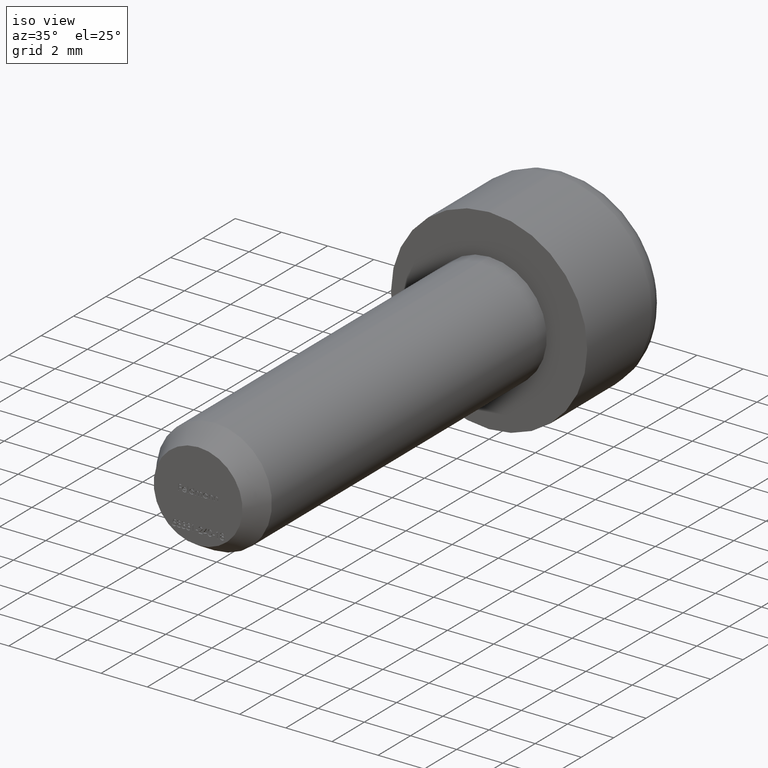
[diagram: clean part render]
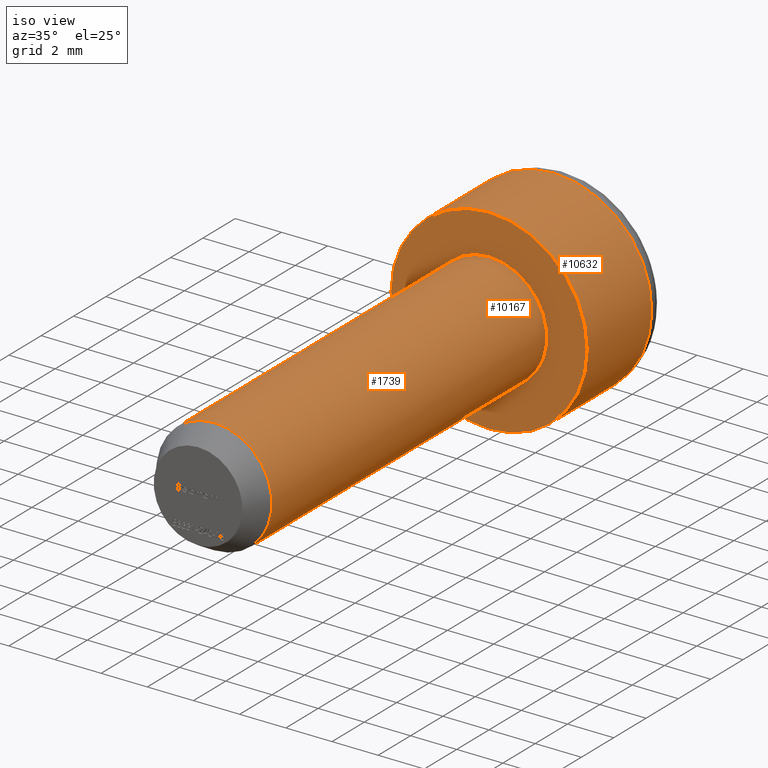
[diagram: same view with one multi-face feature highlighted, each face labeled with its STEP entity id]
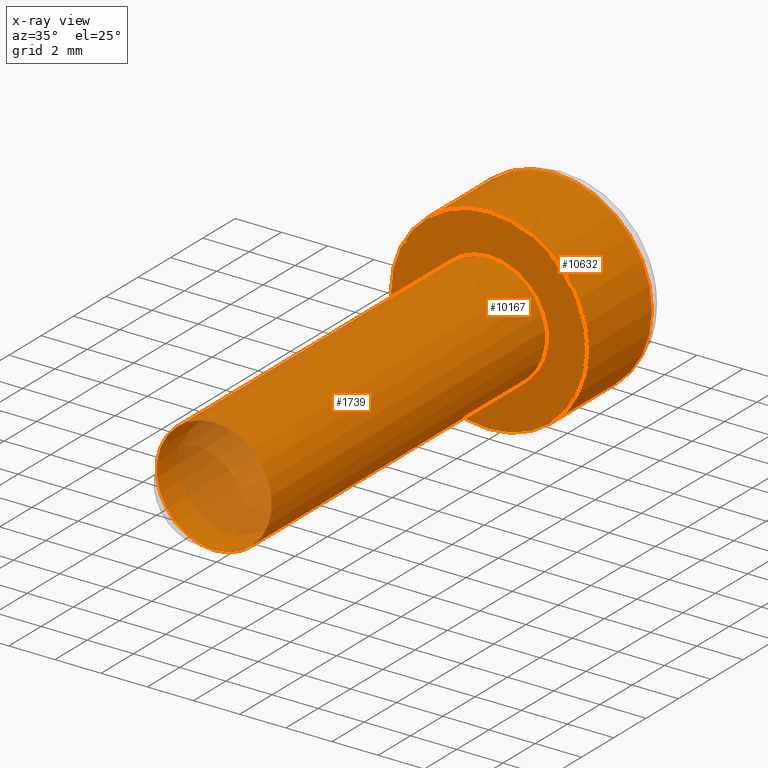
[diagram: x-ray of the same camera — body ghosted, the whole feature saturated]
A machine part, iso view. The highlighted faces form ONE feature: a stepped (counterbored) hole: 2 coaxial cylindrical walls of radii 2.5 -> 4.25 mm joined by 1 annular planar shoulder face(s). The faces share edges in the B-rep.
The next image is the same camera in x-ray: the body ghosted and the whole hole feature saturated, so the bore chain is visible through the body.
Their STEP definitions:
[1] entity #10632 (Cylinder):
#249 = DIRECTION ( 'NONE',  ( 0.0000000000000000000, 0.0000000000000000000, 1.000000000000000000 ) ) ;
#361 = EDGE_LOOP ( 'NONE', ( #12099 ) ) ;
#1545 = ORIENTED_EDGE ( 'NONE', *, *, #1563, .T. ) ;
#1563 = EDGE_CURVE ( 'NONE', #8081, #8081, #5659, .T. ) ;
#2125 = DIRECTION ( 'NONE',  ( 0.0000000000000000000, 0.0000000000000000000, 1.000000000000000000 ) ) ;
#2271 = CARTESIAN_POINT ( 'NONE',  ( 0.0000000000000000000, 4.000000000000000000, 0.0000000000000000000 ) ) ;
#2658 = DIRECTION ( 'NONE',  ( -0.0000000000000000000, -1.000000000000000000, -0.0000000000000000000 ) ) ;
#4012 = DIRECTION ( 'NONE',  ( 0.0000000000000000000, 0.0000000000000000000, -1.000000000000000000 ) ) ;
#4403 = CIRCLE ( 'NONE', #8572, 4.250000000000000000 ) ;
#5233 = CARTESIAN_POINT ( 'NONE',  ( 0.0000000000000000000, 4.000000000000000000, 4.250000000000000000 ) ) ;
#5659 = CIRCLE ( 'NONE', #14216, 4.250000000000000000 ) ;
#6739 = DIRECTION ( 'NONE',  ( 0.0000000000000000000, 1.000000000000000000, 0.0000000000000000000 ) ) ;
#8081 = VERTEX_POINT ( 'NONE', #9154 ) ;
#8190 = EDGE_LOOP ( 'NONE', ( #1545 ) ) ;
#8572 = AXIS2_PLACEMENT_3D ( 'NONE', #2271, #10852, #2125 ) ;
#8787 = AXIS2_PLACEMENT_3D ( 'NONE', #15227, #2658, #4012 ) ;
#9154 = CARTESIAN_POINT ( 'NONE',  ( 0.0000000000000000000, 0.0000000000000000000, 4.250000000000000000 ) ) ;
#10448 = CARTESIAN_POINT ( 'NONE',  ( 0.0000000000000000000, 0.0000000000000000000, 0.0000000000000000000 ) ) ;
#10632 = ADVANCED_FACE ( 'NONE', ( #14344, #13574 ), #10875, .T. ) ;
#10852 = DIRECTION ( 'NONE',  ( -0.0000000000000000000, -1.000000000000000000, -0.0000000000000000000 ) ) ;
#10875 = CYLINDRICAL_SURFACE ( 'NONE', #8787, 4.250000000000000000 ) ;
#12099 = ORIENTED_EDGE ( 'NONE', *, *, #12448, .T. ) ;
#12448 = EDGE_CURVE ( 'NONE', #12790, #12790, #4403, .T. ) ;
#12790 = VERTEX_POINT ( 'NONE', #5233 ) ;
#13574 = FACE_OUTER_BOUND ( 'NONE', #8190, .T. ) ;
#14216 = AXIS2_PLACEMENT_3D ( 'NONE', #10448, #6739, #249 ) ;
#14344 = FACE_OUTER_BOUND ( 'NONE', #361, .T. ) ;
#15227 = CARTESIAN_POINT ( 'NONE',  ( 0.0000000000000000000, 5.000000000000000000, 0.0000000000000000000 ) ) ;
[2] entity #1739 (Cylinder):
#83 = VERTEX_POINT ( 'NONE', #5458 ) ;
#1719 = ORIENTED_EDGE ( 'NONE', *, *, #7294, .T. ) ;
#1739 = ADVANCED_FACE ( 'NONE', ( #4835, #16138 ), #12262, .T. ) ;
#3344 = DIRECTION ( 'NONE',  ( 0.0000000000000000000, 0.0000000000000000000, 1.000000000000000000 ) ) ;
#4466 = DIRECTION ( 'NONE',  ( 0.0000000000000000000, 0.0000000000000000000, -1.000000000000000000 ) ) ;
#4782 = CARTESIAN_POINT ( 'NONE',  ( 0.0000000000000000000, -18.00000000000000000, 0.0000000000000000000 ) ) ;
#4835 = FACE_OUTER_BOUND ( 'NONE', #10721, .T. ) ;
#5456 = AXIS2_PLACEMENT_3D ( 'NONE', #5810, #6017, #3344 ) ;
#5458 = CARTESIAN_POINT ( 'NONE',  ( 0.0000000000000000000, -16.99999999999999300, -2.500000000000000000 ) ) ;
#5598 = CIRCLE ( 'NONE', #8152, 2.500000000000000000 ) ;
#5810 = CARTESIAN_POINT ( 'NONE',  ( 0.0000000000000000000, 0.0000000000000000000, 0.0000000000000000000 ) ) ;
#6017 = DIRECTION ( 'NONE',  ( -0.0000000000000000000, -1.000000000000000000, -0.0000000000000000000 ) ) ;
#6061 = DIRECTION ( 'NONE',  ( 0.0000000000000000000, 0.0000000000000000000, 1.000000000000000000 ) ) ;
#7294 = EDGE_CURVE ( 'NONE', #83, #83, #5598, .T. ) ;
#7874 = EDGE_CURVE ( 'NONE', #14501, #14501, #14770, .T. ) ;
#8152 = AXIS2_PLACEMENT_3D ( 'NONE', #15619, #14307, #4466 ) ;
#9258 = EDGE_LOOP ( 'NONE', ( #9488 ) ) ;
#9488 = ORIENTED_EDGE ( 'NONE', *, *, #7874, .T. ) ;
#10187 = CARTESIAN_POINT ( 'NONE',  ( 0.0000000000000000000, 0.0000000000000000000, 2.500000000000000000 ) ) ;
#10721 = EDGE_LOOP ( 'NONE', ( #1719 ) ) ;
#10861 = DIRECTION ( 'NONE',  ( -0.0000000000000000000, 1.000000000000000000, -0.0000000000000000000 ) ) ;
#12262 = CYLINDRICAL_SURFACE ( 'NONE', #14517, 2.500000000000000000 ) ;
#14307 = DIRECTION ( 'NONE',  ( 0.0000000000000000000, 1.000000000000000000, 0.0000000000000000000 ) ) ;
#14501 = VERTEX_POINT ( 'NONE', #10187 ) ;
#14517 = AXIS2_PLACEMENT_3D ( 'NONE', #4782, #10861, #6061 ) ;
#14770 = CIRCLE ( 'NONE', #5456, 2.500000000000000000 ) ;
#15619 = CARTESIAN_POINT ( 'NONE',  ( 0.0000000000000000000, -16.99999999999999300, 0.0000000000000000000 ) ) ;
#16138 = FACE_OUTER_BOUND ( 'NONE', #9258, .T. ) ;
[3] entity #10167 (Plane):
#249 = DIRECTION ( 'NONE',  ( 0.0000000000000000000, 0.0000000000000000000, 1.000000000000000000 ) ) ;
#1563 = EDGE_CURVE ( 'NONE', #8081, #8081, #5659, .T. ) ;
#2875 = FACE_BOUND ( 'NONE', #8851, .T. ) ;
#3344 = DIRECTION ( 'NONE',  ( 0.0000000000000000000, 0.0000000000000000000, 1.000000000000000000 ) ) ;
#4604 = ORIENTED_EDGE ( 'NONE', *, *, #7874, .F. ) ;
#5028 = EDGE_LOOP ( 'NONE', ( #15387 ) ) ;
#5456 = AXIS2_PLACEMENT_3D ( 'NONE', #5810, #6017, #3344 ) ;
#5659 = CIRCLE ( 'NONE', #14216, 4.250000000000000000 ) ;
#5810 = CARTESIAN_POINT ( 'NONE',  ( 0.0000000000000000000, 0.0000000000000000000, 0.0000000000000000000 ) ) ;
#6017 = DIRECTION ( 'NONE',  ( -0.0000000000000000000, -1.000000000000000000, -0.0000000000000000000 ) ) ;
#6739 = DIRECTION ( 'NONE',  ( 0.0000000000000000000, 1.000000000000000000, 0.0000000000000000000 ) ) ;
#6999 = CARTESIAN_POINT ( 'NONE',  ( 0.0000000000000000000, 0.0000000000000000000, 0.0000000000000000000 ) ) ;
#7874 = EDGE_CURVE ( 'NONE', #14501, #14501, #14770, .T. ) ;
#8081 = VERTEX_POINT ( 'NONE', #9154 ) ;
#8115 = PLANE ( 'NONE',  #10260 ) ;
#8178 = DIRECTION ( 'NONE',  ( 0.0000000000000000000, -0.0000000000000000000, 1.000000000000000000 ) ) ;
#8851 = EDGE_LOOP ( 'NONE', ( #4604 ) ) ;
#9154 = CARTESIAN_POINT ( 'NONE',  ( 0.0000000000000000000, 0.0000000000000000000, 4.250000000000000000 ) ) ;
#10167 = ADVANCED_FACE ( 'NONE', ( #2875, #15335 ), #8115, .F. ) ;
#10187 = CARTESIAN_POINT ( 'NONE',  ( 0.0000000000000000000, 0.0000000000000000000, 2.500000000000000000 ) ) ;
#10260 = AXIS2_PLACEMENT_3D ( 'NONE', #6999, #12995, #8178 ) ;
#10448 = CARTESIAN_POINT ( 'NONE',  ( 0.0000000000000000000, 0.0000000000000000000, 0.0000000000000000000 ) ) ;
#12995 = DIRECTION ( 'NONE',  ( 0.0000000000000000000, 1.000000000000000000, 0.0000000000000000000 ) ) ;
#14216 = AXIS2_PLACEMENT_3D ( 'NONE', #10448, #6739, #249 ) ;
#14501 = VERTEX_POINT ( 'NONE', #10187 ) ;
#14770 = CIRCLE ( 'NONE', #5456, 2.500000000000000000 ) ;
#15335 = FACE_OUTER_BOUND ( 'NONE', #5028, .T. ) ;
#15387 = ORIENTED_EDGE ( 'NONE', *, *, #1563, .F. ) ;